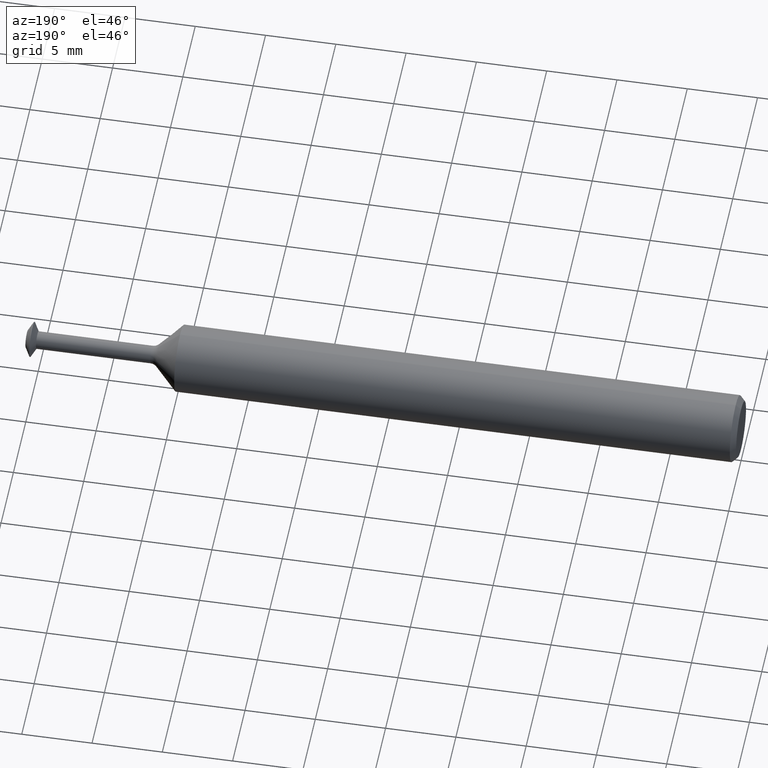
[diagram: clean part render]
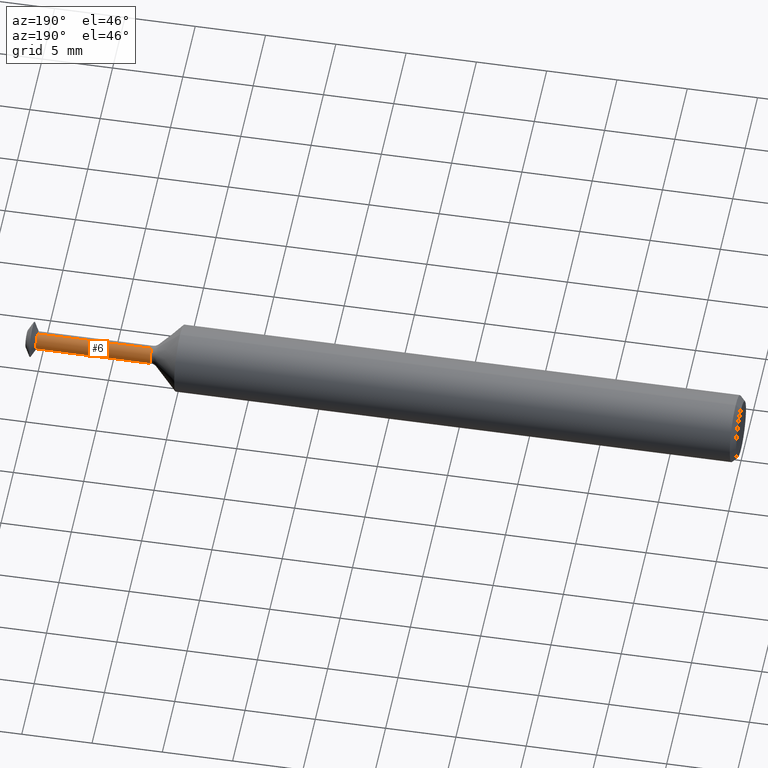
[diagram: same view with one face highlighted and labeled with its STEP entity id]
A machine part, auxiliary view. The second image highlights one B-rep face of the part: STEP entity #6.
In plain terms, the highlighted cylindrical surface (edge-blend (fillet) strip) has radius 0.6223 mm, axis along (-1, -0, -0).
Its self-contained STEP definition (entity closure, byte-faithful):
#6 = ADVANCED_FACE ( 'NONE', ( #76 ), #319, .T. ) ;
#12 = CARTESIAN_POINT ( 'NONE',  ( 1.970380621325877213, 4.500576986866479174E-18, 0.02449999999999963665 ) ) ;
#23 = DIRECTION ( 'NONE',  ( -1.000000000000000000, -0.0000000000000000000, -0.0000000000000000000 ) ) ;
#27 = EDGE_CURVE ( 'NONE', #173, #298, #267, .T. ) ;
#28 = CARTESIAN_POINT ( 'NONE',  ( 1.650545649722265917, 0.0000000000000000000, 0.0000000000000000000 ) ) ;
#61 = CARTESIAN_POINT ( 'NONE',  ( 1.650545649722265917, 3.000384657910967884E-18, -0.02449999999999960543 ) ) ;
#73 = ORIENTED_EDGE ( 'NONE', *, *, #132, .T. ) ;
#76 = FACE_OUTER_BOUND ( 'NONE', #232, .T. ) ;
#115 = DIRECTION ( 'NONE',  ( -1.000000000000000000, -0.0000000000000000000, -0.0000000000000000000 ) ) ;
#127 = CARTESIAN_POINT ( 'NONE',  ( 0.0000000000000000000, 0.0000000000000000000, 0.0000000000000000000 ) ) ;
#132 = EDGE_CURVE ( 'NONE', #262, #298, #361, .T. ) ;
#173 = VERTEX_POINT ( 'NONE', #275 ) ;
#198 = CARTESIAN_POINT ( 'NONE',  ( 0.0000000000000000000, 0.0000000000000000000, 0.02449999999999961930 ) ) ;
#224 = AXIS2_PLACEMENT_3D ( 'NONE', #407, #442, #474 ) ;
#228 = CARTESIAN_POINT ( 'NONE',  ( 1.970380621325877213, 0.0000000000000000000, -0.02449999999999963665 ) ) ;
#232 = EDGE_LOOP ( 'NONE', ( #459, #73, #499, #495 ) ) ;
#241 = EDGE_CURVE ( 'NONE', #410, #173, #483, .T. ) ;
#262 = VERTEX_POINT ( 'NONE', #228 ) ;
#267 = CIRCLE ( 'NONE', #473, 0.02449999999999960543 ) ;
#275 = CARTESIAN_POINT ( 'NONE',  ( 1.650545649722265917, 0.0000000000000000000, 0.02449999999999960543 ) ) ;
#280 = VECTOR ( 'NONE', #115, 39.37007874015748143 ) ;
#281 = AXIS2_PLACEMENT_3D ( 'NONE', #127, #366, #451 ) ;
#298 = VERTEX_POINT ( 'NONE', #61 ) ;
#312 = DIRECTION ( 'NONE',  ( 0.0000000000000000000, 0.0000000000000000000, 1.000000000000000000 ) ) ;
#319 = CYLINDRICAL_SURFACE ( 'NONE', #281, 0.02449999999999961930 ) ;
#351 = EDGE_CURVE ( 'NONE', #410, #262, #468, .T. ) ;
#361 = LINE ( 'NONE', #420, #419 ) ;
#366 = DIRECTION ( 'NONE',  ( -1.000000000000000000, -0.0000000000000000000, -0.0000000000000000000 ) ) ;
#379 = DIRECTION ( 'NONE',  ( -1.000000000000000000, -0.0000000000000000000, -0.0000000000000000000 ) ) ;
#407 = CARTESIAN_POINT ( 'NONE',  ( 1.970380621325877213, 0.0000000000000000000, 0.0000000000000000000 ) ) ;
#410 = VERTEX_POINT ( 'NONE', #12 ) ;
#419 = VECTOR ( 'NONE', #23, 39.37007874015748143 ) ;
#420 = CARTESIAN_POINT ( 'NONE',  ( 0.0000000000000000000, 3.000384657910969040E-18, -0.02449999999999961930 ) ) ;
#442 = DIRECTION ( 'NONE',  ( -1.000000000000000000, -0.0000000000000000000, -0.0000000000000000000 ) ) ;
#451 = DIRECTION ( 'NONE',  ( 0.0000000000000000000, 0.0000000000000000000, 1.000000000000000000 ) ) ;
#459 = ORIENTED_EDGE ( 'NONE', *, *, #351, .T. ) ;
#468 = CIRCLE ( 'NONE', #224, 0.02449999999999963665 ) ;
#473 = AXIS2_PLACEMENT_3D ( 'NONE', #28, #379, #312 ) ;
#474 = DIRECTION ( 'NONE',  ( 0.0000000000000000000, 0.0000000000000000000, 1.000000000000000000 ) ) ;
#483 = LINE ( 'NONE', #198, #280 ) ;
#495 = ORIENTED_EDGE ( 'NONE', *, *, #241, .F. ) ;
#499 = ORIENTED_EDGE ( 'NONE', *, *, #27, .F. ) ;